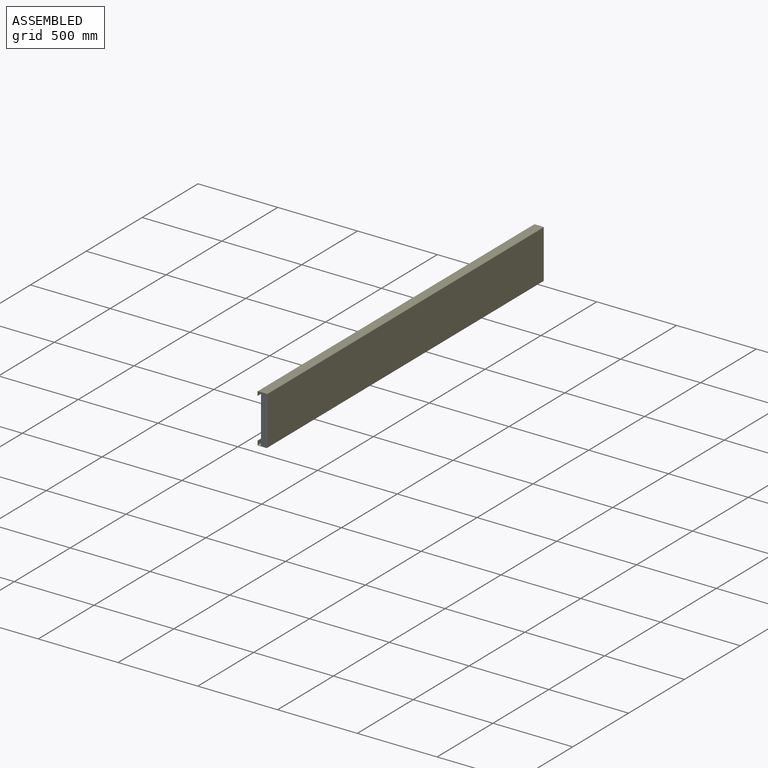
[diagram: assembled view]
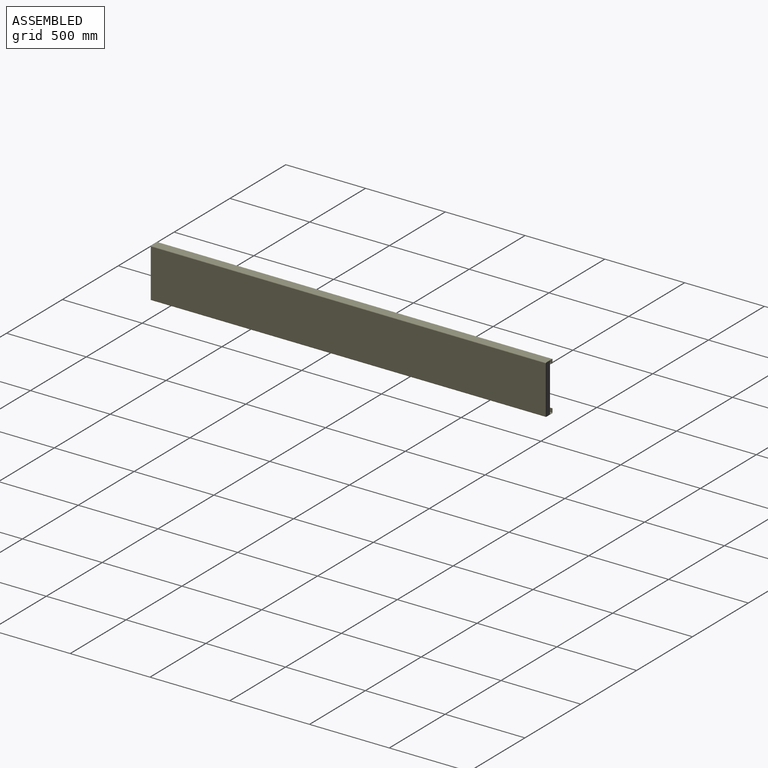
[diagram: assembled view, second angle]
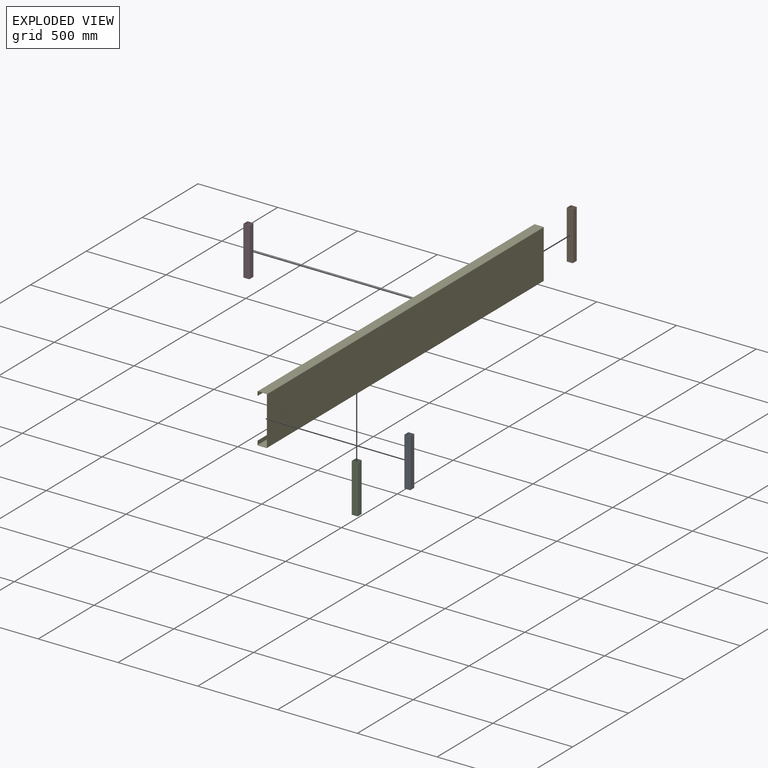
[diagram: exploded view]
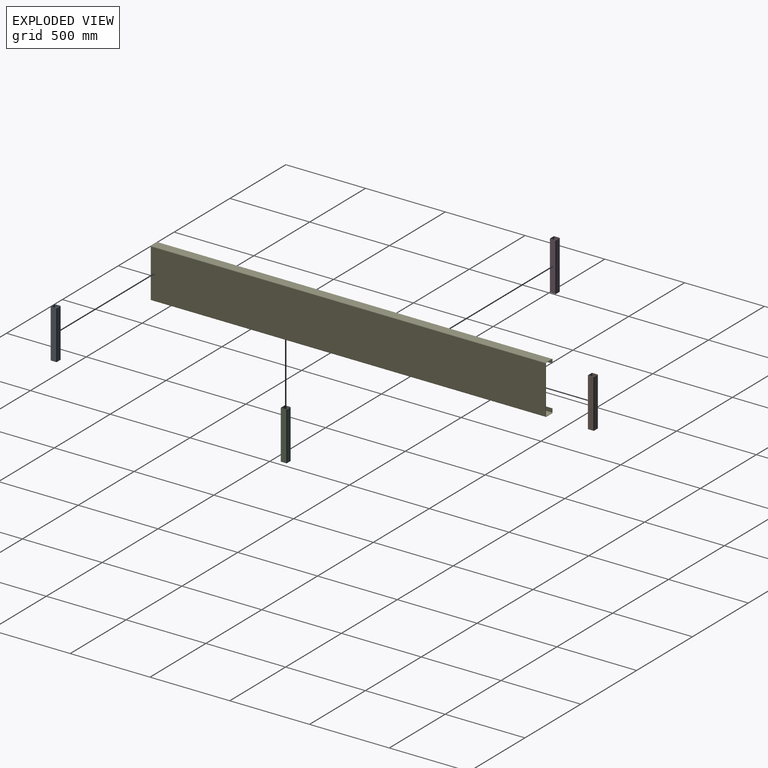
[diagram: exploded view, second angle]
ASSEMBLY  parts=5 mates=3
PART A: 18 faces, bbox 38.1x38.1x304.8 mm
  f0: plane 304.8x33.02mm, normal (1,0,0), area 10064.5mm2, adj f1,f15,f16,f17
  f1: cylinder r=2.54mm len=304.8mm, axis (0,0,-1), area 1216.1mm2, adj f0,f2,f16,f17
  f2: plane 304.8x33.02mm, normal (0,1,0), area 10064.5mm2, adj f1,f3,f16,f17
  f3: cylinder r=2.54mm len=304.8mm, axis (0,0,-1), area 1216.1mm2, adj f2,f4,f16,f17
  f4: plane 304.8x33.02mm, normal (-1,0,0), area 10064.5mm2, adj f3,f5,f16,f17
  f5: cylinder r=2.54mm len=304.8mm, axis (0,0,-1), area 1216.1mm2, adj f4,f6,f16,f17
  f6: plane 304.8x33.02mm, normal (0,-1,0), area 10064.5mm2, adj f5,f15,f16,f17
  f7: cylinder r=1.52mm len=304.8mm, axis (0,0,-1), area 729.7mm2, adj f8,f14,f16,f17
  f8: plane 304.8x31.88mm, normal (-1,0,0), area 9716.1mm2, adj f7,f9,f16,f17
  f9: cylinder r=1.52mm len=304.8mm, axis (0,0,-1), area 729.7mm2, adj f8,f10,f16,f17
  f10: plane 304.8x31.88mm, normal (0,1,0), area 9716.1mm2, adj f9,f11,f16,f17
  f11: cylinder r=1.52mm len=304.8mm, axis (0,0,-1), area 729.7mm2, adj f10,f12,f16,f17
  f12: plane 304.8x31.88mm, normal (1,0,0), area 9716.1mm2, adj f11,f13,f16,f17
  f13: cylinder r=1.52mm len=304.8mm, axis (0,0,-1), area 729.7mm2, adj f12,f14,f16,f17
  f14: plane 304.8x31.88mm, normal (0,-1,0), area 9716.1mm2, adj f7,f13,f16,f17
  f15: cylinder r=2.54mm len=304.8mm, axis (0,0,-1), area 1216.1mm2, adj f0,f6,f16,f17
  f16: plane 38.1x38.1mm, normal (0,0,1), area 228.3mm2, adj f0,f1,f2,f3,f4,f5,f6,f7
  f17: plane 38.1x38.1mm, normal (0,0,-1), area 228.3mm2, adj f0,f1,f2,f3,f4,f5,f6,f7
PART B: same geometry as A
PART C: same geometry as A
PART D: same geometry as A
PART E: 38 faces, bbox 60.2x2476.5x307.8 mm
  f0: plane 23.11x1.52mm, normal (0,1,0), area 35.2mm2, adj f2,f3,f4,f35
  f1: plane 23.11x1.52mm, normal (0,-1,0), area 35.2mm2, adj f2,f3,f4,f34
  f2: plane 2476.5x1.52mm, normal (0,0,1), area 3774.2mm2, adj f0,f1,f3,f4
  f3: plane 2476.5x23.11mm, normal (-1,0,0), area 57241.8mm2, adj f0,f1,f2,f36
  f4: plane 2476.5x23.11mm, normal (1,0,0), area 57241.8mm2, adj f0,f1,f2,f37
  f5: plane 52.58x1.52mm, normal (0,1,0), area 80.1mm2, adj f7,f8,f31,f35
  f6: plane 52.58x1.52mm, normal (0,-1,0), area 80.1mm2, adj f7,f8,f30,f34
  f7: plane 2476.5x52.58mm, normal (0,0,-1), area 130209.4mm2, adj f5,f6,f32,f36
  f8: plane 2476.5x52.58mm, normal (0,0,1), area 130209.4mm2, adj f5,f6,f33,f37
  f9: plane 300.23x1.52mm, normal (0,1,0), area 457.5mm2, adj f11,f12,f27,f31
  f10: plane 300.23x1.52mm, normal (0,-1,0), area 457.5mm2, adj f11,f12,f26,f30
  f11: plane 2476.5x300.23mm, normal (1,0,0), area 743514.6mm2, adj f9,f10,f28,f32
  f12: plane 2476.5x300.23mm, normal (-1,0,0), area 743514.6mm2, adj f9,f10,f29,f33
  f13: plane 52.58x1.52mm, normal (0,1,0), area 80.1mm2, adj f15,f16,f23,f27
  f14: plane 52.58x1.52mm, normal (0,-1,0), area 80.1mm2, adj f15,f16,f22,f26
  f15: plane 2476.5x52.58mm, normal (0,0,1), area 130209.4mm2, adj f13,f14,f24,f28
  f16: plane 2476.5x52.58mm, normal (0,0,-1), area 130209.4mm2, adj f13,f14,f25,f29
  f17: plane 23.11x1.52mm, normal (0,1,0), area 35.2mm2, adj f18,f20,f21,f23
  f18: plane 2476.5x1.52mm, normal (0,0,-1), area 3774.2mm2, adj f17,f19,f20,f21
  f19: plane 23.11x1.52mm, normal (0,-1,0), area 35.2mm2, adj f18,f20,f21,f22
  f20: plane 2476.5x23.11mm, normal (-1,0,0), area 57241.8mm2, adj f17,f18,f19,f24
  f21: plane 2476.5x23.11mm, normal (1,0,0), area 57241.8mm2, adj f17,f18,f19,f25
  f22: plane 3.81x3.81mm, normal (0,-1,0), area 7.3mm2, adj f14,f19,f24,f25
  f23: plane 3.81x3.81mm, normal (0,1,0), area 7.3mm2, adj f13,f17,f24,f25
  f24: cylinder r=3.81mm len=2476.5mm, axis (0,-1,0), area 14821.2mm2, adj f15,f20,f22,f23
  f25: cylinder r=2.29mm len=2476.5mm, axis (0,-1,0), area 8892.7mm2, adj f16,f21,f22,f23
  f26: plane 3.81x3.81mm, normal (0,-1,0), area 7.3mm2, adj f10,f14,f28,f29
  f27: plane 3.81x3.81mm, normal (0,1,0), area 7.3mm2, adj f9,f13,f28,f29
  f28: cylinder r=3.81mm len=2476.5mm, axis (0,-1,0), area 14821.2mm2, adj f11,f15,f26,f27
  f29: cylinder r=2.29mm len=2476.5mm, axis (0,-1,0), area 8892.7mm2, adj f12,f16,f26,f27
  f30: plane 3.81x3.81mm, normal (0,-1,0), area 7.3mm2, adj f6,f10,f32,f33
  f31: plane 3.81x3.81mm, normal (0,1,0), area 7.3mm2, adj f5,f9,f32,f33
  f32: cylinder r=3.81mm len=2476.5mm, axis (0,-1,0), area 14821.2mm2, adj f7,f11,f30,f31
  f33: cylinder r=2.29mm len=2476.5mm, axis (0,-1,0), area 8892.7mm2, adj f8,f12,f30,f31
  f34: plane 3.81x3.81mm, normal (0,-1,0), area 7.3mm2, adj f1,f6,f36,f37
  f35: plane 3.81x3.81mm, normal (0,1,0), area 7.3mm2, adj f0,f5,f36,f37
  f36: cylinder r=3.81mm len=2476.5mm, axis (0,-1,0), area 14821.2mm2, adj f3,f7,f34,f35
  f37: cylinder r=2.29mm len=2476.5mm, axis (0,-1,0), area 8892.7mm2, adj f4,f8,f34,f35
PLACE A t=(-482.91,-1700.41,-495.38)mm
PLACE B t=(-482.91,737.99,-495.38)mm
PLACE C t=(-482.91,-887.61,-495.38)mm
PLACE D t=(-482.91,-74.81,-495.38)mm
PLACE E t=(-463.86,757.04,-495.38)mm fixed
MATE planar B.f2 <-> E.f9  axis (0,1,0) through (-482.91,757.04,-342.98)mm
MATE planar B.f0 <-> E.f12  axis (1,0,0) through (-463.86,721.48,-342.98)mm
MATE planar B.f16 <-> E.f16  axis (0,0,1) through (-465.44,737.99,-190.58)mm
